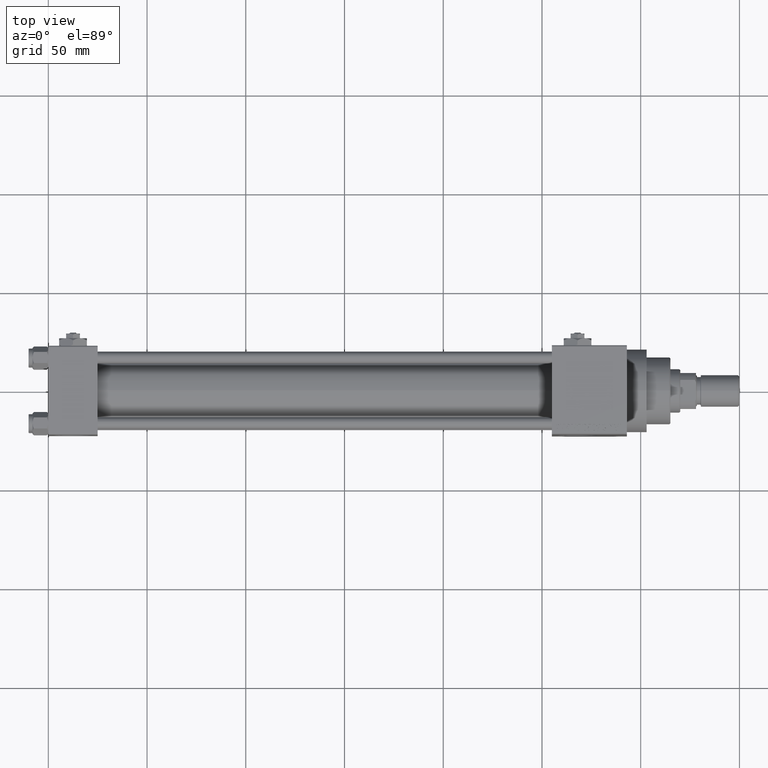
[diagram: clean part render]
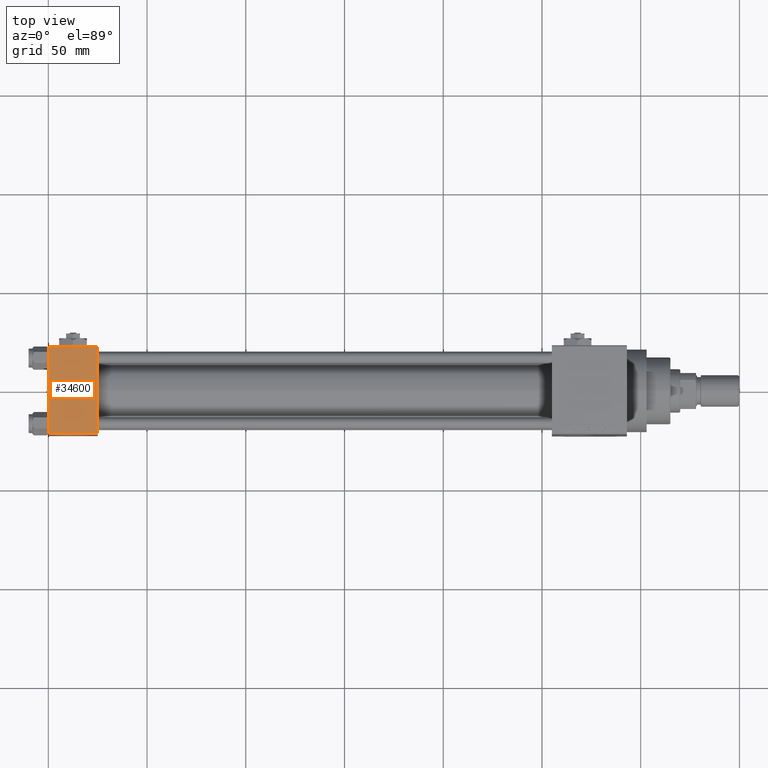
[diagram: same view with one face highlighted and labeled with its STEP entity id]
A machine part, top view. The second image highlights one B-rep face of the part: STEP entity #34600.
In plain terms, the highlighted planar face has unit normal (0, 0, -1).
Its self-contained STEP definition (entity closure, byte-faithful):
#1116 = DIRECTION ( 'NONE',  ( 0.000000000000000000, -1.000000000000000000, -7.709882115452476934E-17 ) ) ;
#3175 = CARTESIAN_POINT ( 'NONE',  ( 25.00000000000000000, -21.99999999999999289, 22.50000000000000000 ) ) ;
#3622 = DIRECTION ( 'NONE',  ( -1.000000000000000000, 0.000000000000000000, 0.000000000000000000 ) ) ;
#9122 = LINE ( 'NONE', #20681, #14458 ) ;
#10470 = CARTESIAN_POINT ( 'NONE',  ( 0.000000000000000000, 21.99999999999999289, 22.50000000000000355 ) ) ;
#13611 = EDGE_CURVE ( 'NONE', #44155, #32730, #29509, .T. ) ;
#14335 = VERTEX_POINT ( 'NONE', #21822 ) ;
#14458 = VECTOR ( 'NONE', #1116, 1000.000000000000000 ) ;
#14904 = CARTESIAN_POINT ( 'NONE',  ( 0.000000000000000000, 21.99999999999999289, 22.50000000000000355 ) ) ;
#15169 = VECTOR ( 'NONE', #3622, 1000.000000000000000 ) ;
#16379 = VECTOR ( 'NONE', #37256, 1000.000000000000000 ) ;
#17930 = ORIENTED_EDGE ( 'NONE', *, *, #24515, .F. ) ;
#18941 = ORIENTED_EDGE ( 'NONE', *, *, #31276, .T. ) ;
#19149 = LINE ( 'NONE', #46933, #27869 ) ;
#19418 = DIRECTION ( 'NONE',  ( 0.000000000000000000, 1.000000000000000000, 7.709882115452476934E-17 ) ) ;
#20166 = ORIENTED_EDGE ( 'NONE', *, *, #38680, .T. ) ;
#20681 = CARTESIAN_POINT ( 'NONE',  ( 0.000000000000000000, 22.50000000000000000, 22.50000000000000355 ) ) ;
#21234 = CARTESIAN_POINT ( 'NONE',  ( 25.00000000000000000, -21.99999999999997868, 22.50000000000000000 ) ) ;
#21822 = CARTESIAN_POINT ( 'NONE',  ( 25.00000000000000000, 21.99999999999999289, 22.50000000000000355 ) ) ;
#24515 = EDGE_CURVE ( 'NONE', #14335, #32730, #19149, .T. ) ;
#27464 = EDGE_LOOP ( 'NONE', ( #20166, #32185, #17930, #18941 ) ) ;
#27869 = VECTOR ( 'NONE', #38917, 1000.000000000000000 ) ;
#29509 = LINE ( 'NONE', #3175, #16379 ) ;
#29953 = PLANE ( 'NONE',  #46458 ) ;
#30434 = CARTESIAN_POINT ( 'NONE',  ( 25.00000000000000000, 22.50000000000000000, 22.50000000000000355 ) ) ;
#31276 = EDGE_CURVE ( 'NONE', #14335, #42270, #34416, .T. ) ;
#32185 = ORIENTED_EDGE ( 'NONE', *, *, #13611, .T. ) ;
#32730 = VERTEX_POINT ( 'NONE', #21234 ) ;
#34416 = LINE ( 'NONE', #14904, #15169 ) ;
#34600 = ADVANCED_FACE ( 'NONE', ( #42451 ), #29953, .F. ) ;
#37256 = DIRECTION ( 'NONE',  ( 1.000000000000000000, 0.000000000000000000, 0.000000000000000000 ) ) ;
#38680 = EDGE_CURVE ( 'NONE', #42270, #44155, #9122, .T. ) ;
#38917 = DIRECTION ( 'NONE',  ( 0.000000000000000000, -1.000000000000000000, -7.709882115452476934E-17 ) ) ;
#42270 = VERTEX_POINT ( 'NONE', #10470 ) ;
#42451 = FACE_OUTER_BOUND ( 'NONE', #27464, .T. ) ;
#44155 = VERTEX_POINT ( 'NONE', #45674 ) ;
#45674 = CARTESIAN_POINT ( 'NONE',  ( 0.000000000000000000, -21.99999999999997868, 22.50000000000000000 ) ) ;
#46458 = AXIS2_PLACEMENT_3D ( 'NONE', #30434, #49247, #19418 ) ;
#46933 = CARTESIAN_POINT ( 'NONE',  ( 25.00000000000000000, 22.50000000000000000, 22.50000000000000355 ) ) ;
#49247 = DIRECTION ( 'NONE',  ( 0.000000000000000000, 7.709882115452476934E-17, -1.000000000000000000 ) ) ;